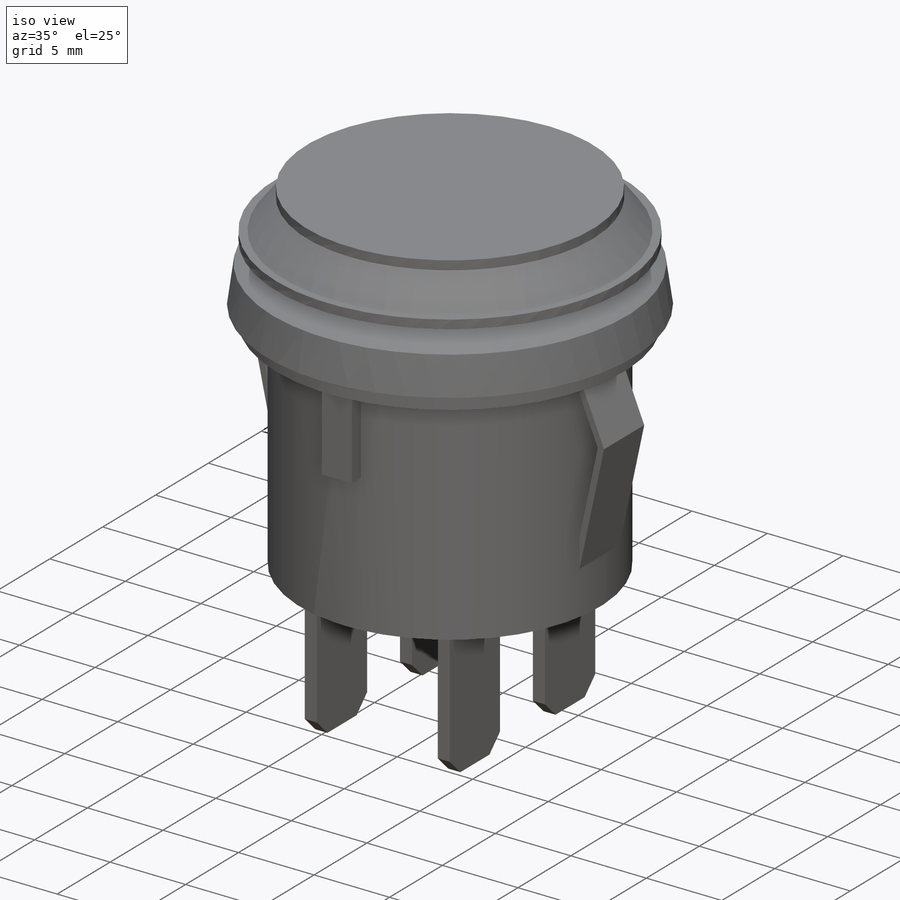
[diagram: iso view]
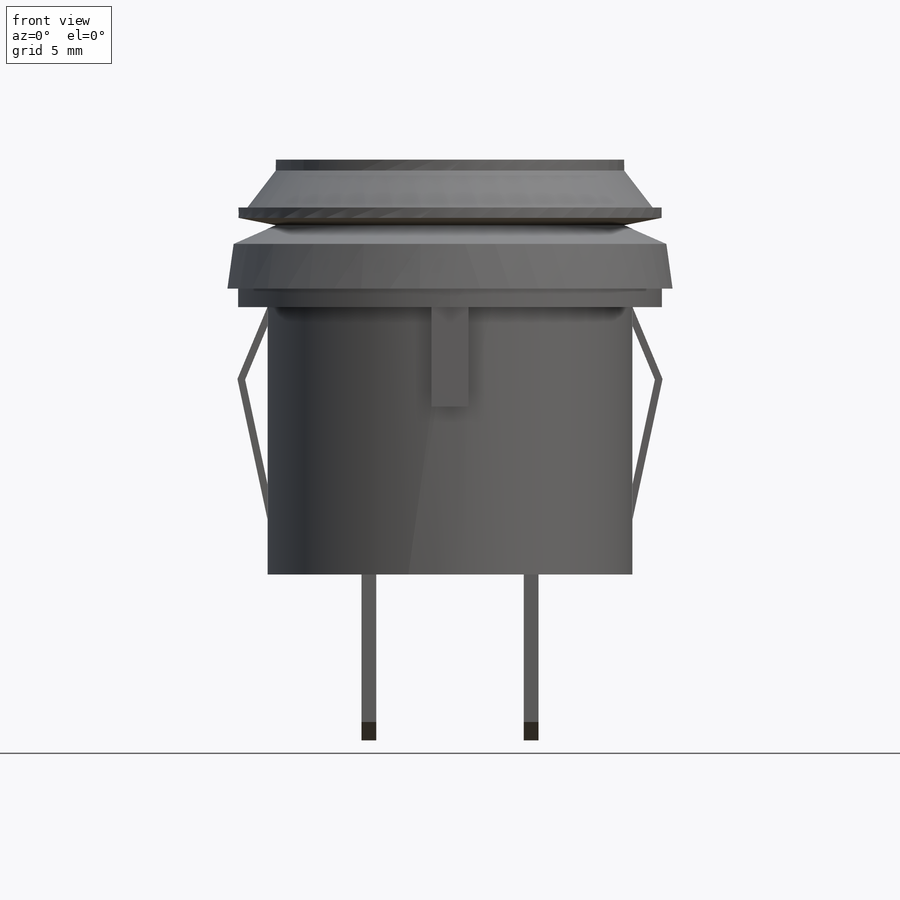
[diagram: front view]
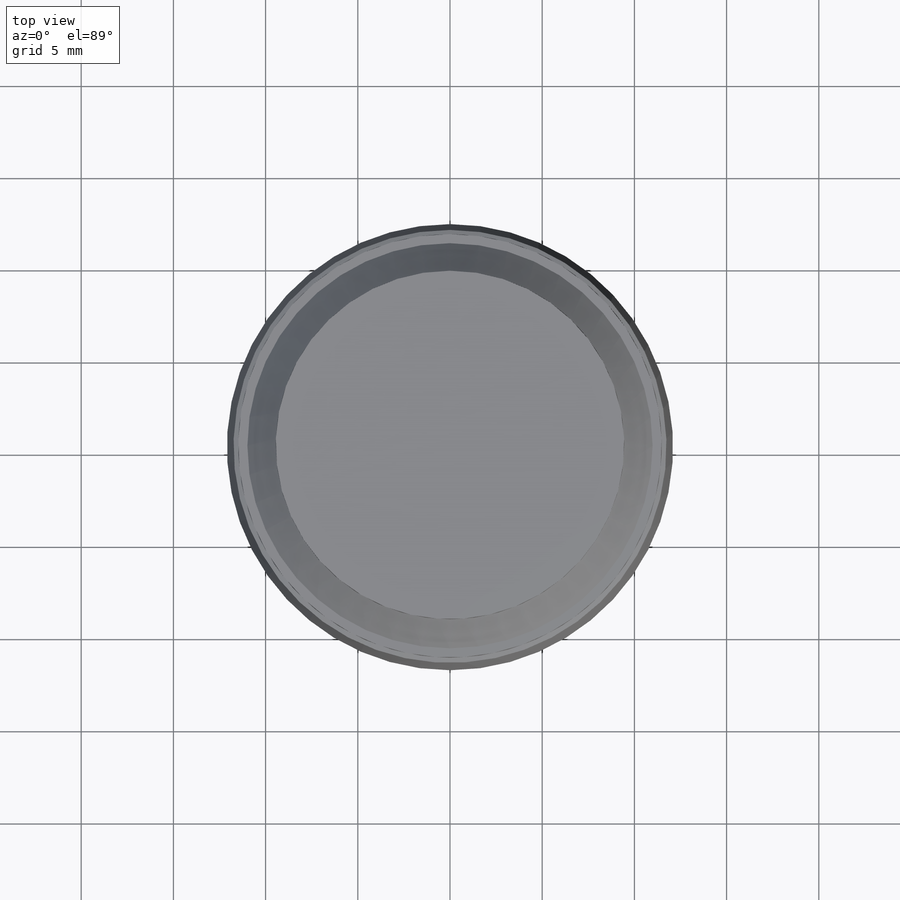
[diagram: top view]
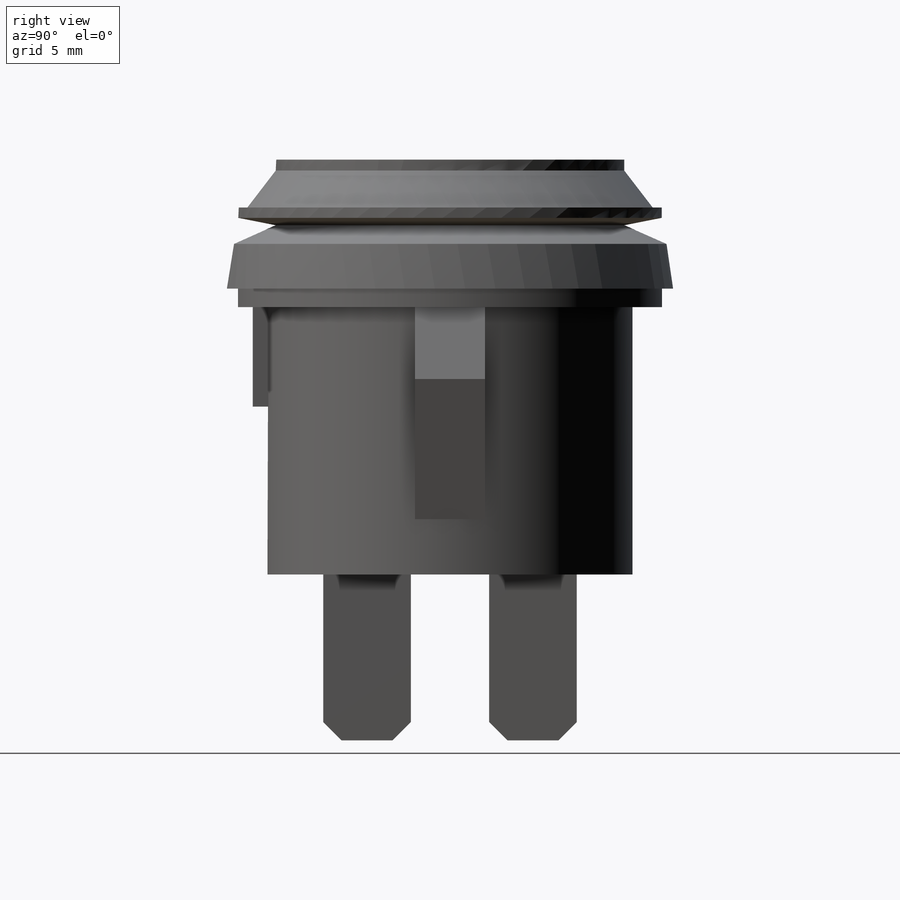
[diagram: right view]
SOLIDWORKS PART (.sldprt)
format: sldprt  version: not decoded by parser v0  size: 349,696 bytes
history: native  units: mm
features: sketch x6, extrude x5, material x1, plane x1, revolve x1, chamfer x1 (+13 scaffold rows collapsed)
feature tree (28):
  scaffold x13  (default folders/planes/origin — collapsed)
  material  "Material <not specified>"
  sketch  "Sketch1"  dims[D1=19.8mm]
  extrude  "Boss-Extrude1"  Depth=14.5mm
  sketch  "Sketch2"  dims[D1=23.0mm]
  extrude  "Boss-Extrude2"  Depth=1mm
  plane  "Plane1"  Offset=10.7mm
  sketch  "Sketch3"  dims[D1=2.0mm D2=5.4mm]
  extrude  "Boss-Extrude3"  [1 undecoded]
  sketch  "Sketch4"  dims[D2=7.6mm D3=3.9mm D1=0.4mm]
  extrude  "Boss-Extrude4"  Depth=3.8mm
  sketch  "Sketch5"  dims[D1=18.9mm D2=24.2mm D3=7.0mm]
  revolve  "Revolve1"  Angle=360deg
  sketch  "Sketch6"  dims[D1=4.75mm D2=0.8mm D3=4.25mm D4=8.0mm D5=4.75mm]
  extrude  "Boss-Extrude5"  Depth=9mm
  chamfer  "Chamfer1"  Distance=1mm Angle=45deg
decode coverage: 12 of 13 modeling features carry decoded parameters
note: 1 parameter value undecoded
note: suppression state not decoded; provenance and decode notes live in map.json
